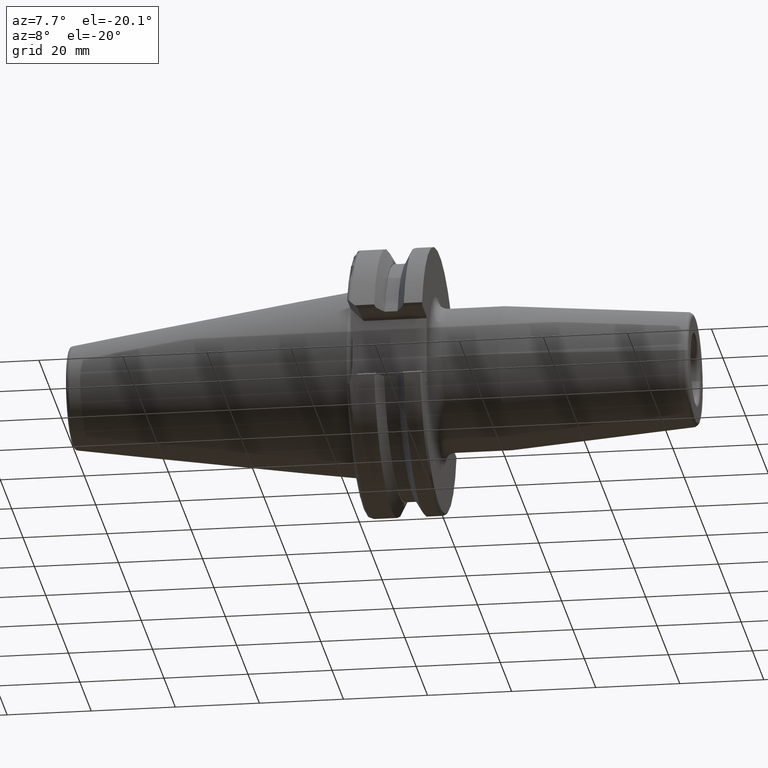
[diagram: clean part render]
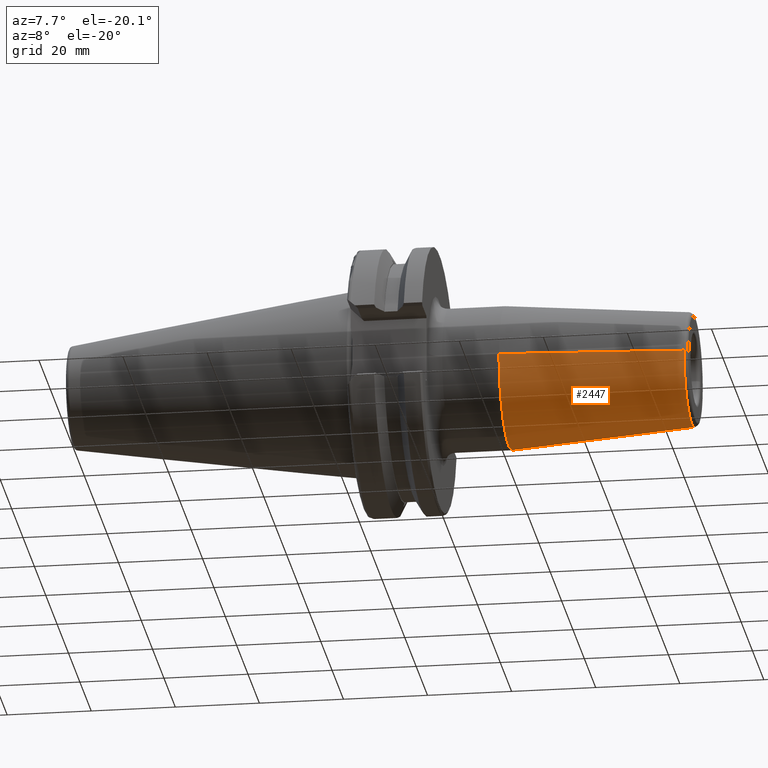
[diagram: same view with one face highlighted and labeled with its STEP entity id]
A machine part, auxiliary view. The second image highlights one B-rep face of the part: STEP entity #2447.
In plain terms, the highlighted conical surface has half-angle 4.5 deg.
Its self-contained STEP definition (entity closure, byte-faithful):
#227=CARTESIAN_POINT('',(7.907846005100E1,0.E0,0.E0));
#228=DIRECTION('',(-1.E0,0.E0,0.E0));
#229=DIRECTION('',(0.E0,1.E0,0.E0));
#230=AXIS2_PLACEMENT_3D('',#227,#228,#229);
#232=DIRECTION('',(-9.969172585512E-1,7.846005099922E-2,1.403395466297E-14));
#233=VECTOR('',#232,4.368504359576E1);
#234=CARTESIAN_POINT('',(7.907846005100E1,1.357252765541E1,
-6.109920145617E-13));
#235=LINE('',#234,#233);
#236=DIRECTION('',(-9.969172585512E-1,-7.846005099922E-2,-1.401411796725E-14));
#237=VECTOR('',#236,4.368504359576E1);
#238=CARTESIAN_POINT('',(7.907846005100E1,-1.357252765541E1,
6.101254476442E-13));
#239=LINE('',#238,#237);
#1717=CARTESIAN_POINT('',(3.552808614983E1,0.E0,0.E0));
#1718=DIRECTION('',(-1.E0,0.E0,0.E0));
#1719=DIRECTION('',(0.E0,1.E0,0.E0));
#1720=AXIS2_PLACEMENT_3D('',#1717,#1718,#1719);
#2027=CARTESIAN_POINT('',(3.552808614983E1,1.700005840383E1,0.E0));
#2028=CARTESIAN_POINT('',(3.552808614983E1,-1.700005840383E1,0.E0));
#2029=VERTEX_POINT('',#2027);
#2030=VERTEX_POINT('',#2028);
#2051=CARTESIAN_POINT('',(7.907846005100E1,1.357252765541E1,0.E0));
#2052=CARTESIAN_POINT('',(7.907846005100E1,-1.357252765541E1,0.E0));
#2053=VERTEX_POINT('',#2051);
#2054=VERTEX_POINT('',#2052);
#2433=CARTESIAN_POINT('',(5.730327310041E1,0.E0,0.E0));
#2434=DIRECTION('',(-1.E0,0.E0,0.E0));
#2435=DIRECTION('',(0.E0,1.E0,0.E0));
#2436=AXIS2_PLACEMENT_3D('',#2433,#2434,#2435);
#2437=CONICAL_SURFACE('',#2436,1.528629302962E1,4.500054902266E0);
#2438=ORIENTED_EDGE('',*,*,#2423,.F.);
#2440=ORIENTED_EDGE('',*,*,#2439,.T.);
#2442=ORIENTED_EDGE('',*,*,#2441,.T.);
#2444=ORIENTED_EDGE('',*,*,#2443,.F.);
#2445=EDGE_LOOP('',(#2438,#2440,#2442,#2444));
#2446=FACE_OUTER_BOUND('',#2445,.F.);
#2447=ADVANCED_FACE('',(#2446),#2437,.T.);
#231=CIRCLE('',#230,1.357252765541E1);
#1721=CIRCLE('',#1720,1.700005840383E1);
#2423=EDGE_CURVE('',#2053,#2054,#231,.T.);
#2439=EDGE_CURVE('',#2053,#2029,#235,.T.);
#2441=EDGE_CURVE('',#2029,#2030,#1721,.T.);
#2443=EDGE_CURVE('',#2054,#2030,#239,.T.);